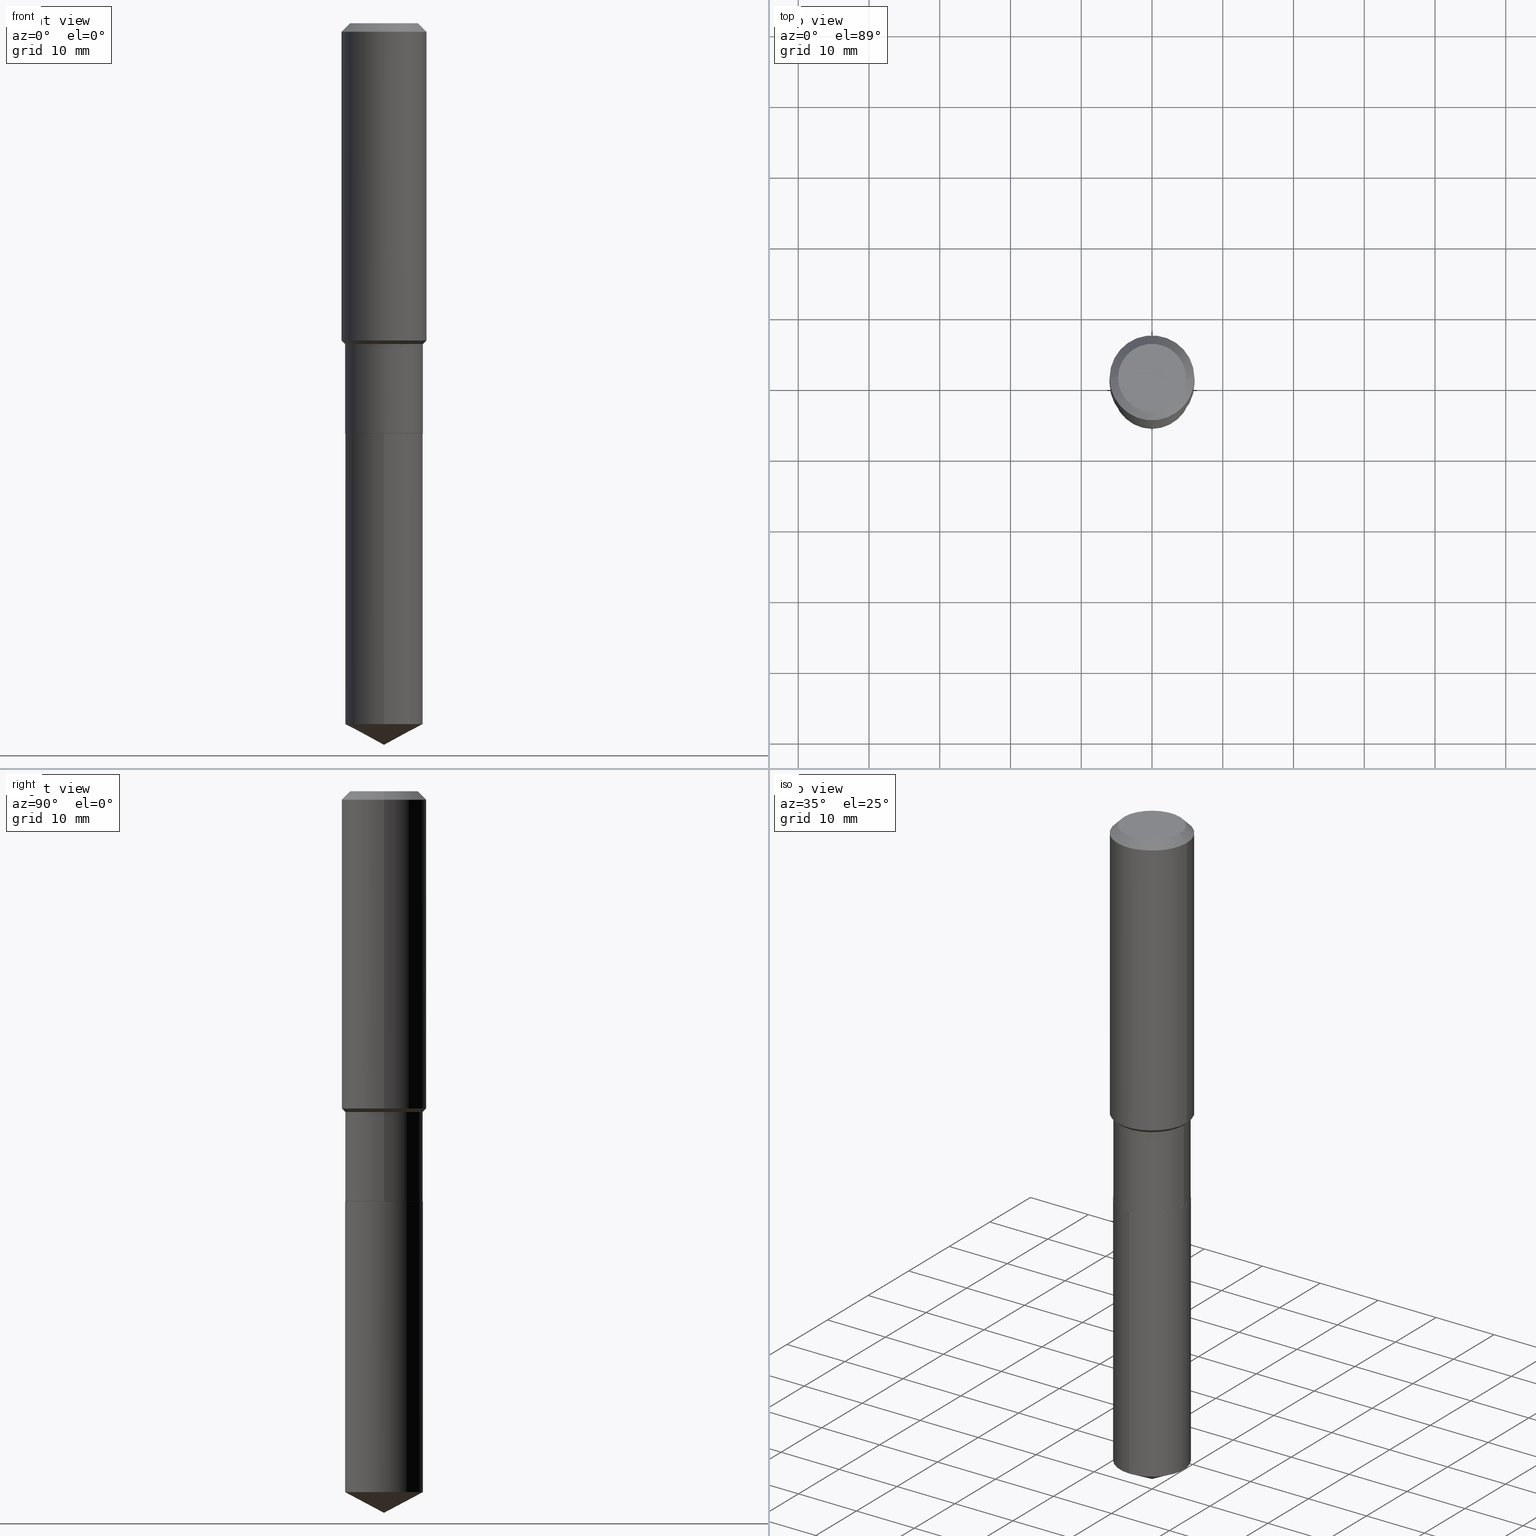
[diagram: canonical four-view strip — front | top / right | iso, engineering-drawing reading convention]
A machine part, canonical four-view strip (front | top / right | iso — engineering-drawing reading convention). The complete STEP part file that produces these views, byte-faithful:
ISO-10303-21;
HEADER;
FILE_DESCRIPTION (( 'STEP AP203' ),
    '1' );
FILE_NAME ('64680.STEP',
    '2024-04-24T18:45:04',
    ( '' ),
    ( '' ),
    'SwSTEP 2.0',
    'SolidWorks 2023',
    '' );
FILE_SCHEMA (( 'CONFIG_CONTROL_DESIGN' ));
ENDSEC;

DATA;
#1 = AXIS2_PLACEMENT_3D ( 'NONE', #94, #480, #281 ) ;
#2 = AXIS2_PLACEMENT_3D ( 'NONE', #400, #213, #442 ) ;
#3 = AXIS2_PLACEMENT_3D ( 'NONE', #462, #262, #466 ) ;
#4 =( NAMED_UNIT ( * ) PLANE_ANGLE_UNIT ( ) SI_UNIT ( $, .RADIAN. ) );
#5 = CLOSED_SHELL ( 'NONE', ( #460, #68, #359, #71, #26 ) ) ;
#6 = PLANE ( 'NONE',  #404 ) ;
#7 = DIRECTION ( 'NONE',  ( 1.000000000000000000, -6.982962677686264344E-15, 0.000000000000000000 ) ) ;
#8 = DIRECTION ( 'NONE',  ( -2.445468806185136597E-29, 3.491481338843145583E-15, 1.000000000000000000 ) ) ;
#9 = FACE_OUTER_BOUND ( 'NONE', #233, .T. ) ;
#10 = CONICAL_SURFACE ( 'NONE', #51, 0.2361999999999999933, 0.7853981633974452814 ) ;
#11 = LINE ( 'NONE', #312, #306 ) ;
#12 = DIRECTION ( 'NONE',  ( 1.000000000000000000, -6.982962677686271444E-15, 0.000000000000000000 ) ) ;
#13 = DIRECTION ( 'NONE',  ( -2.445387649813631666E-29, 3.491597559386274719E-15, 1.000000000000000000 ) ) ;
#14 = LINE ( 'NONE', #24, #285 ) ;
#15 = CLOSED_SHELL ( 'NONE', ( #318, #324, #420, #259, #145, #58, #134, #434, #377, #112, #403, #408 ) ) ;
#16 = LINE ( 'NONE', #307, #279 ) ;
#17 = MECHANICAL_CONTEXT ( 'NONE', #226, 'mechanical' ) ;
#18 = DIRECTION ( 'NONE',  ( -0.7071067811865493491, 7.493145998870360471E-15, 0.7071067811865456854 ) ) ;
#19 = CYLINDRICAL_SURFACE ( 'NONE', #485, 0.2165499999999999647 ) ;
#20 = CIRCLE ( 'NONE', #182, 0.1889600000000000168 ) ;
#21 = AXIS2_PLACEMENT_3D ( 'NONE', #342, #8, #146 ) ;
#22 = APPROVAL_DATE_TIME ( #30, #97 ) ;
#23 = CIRCLE ( 'NONE', #242, 0.2361999999999999933 ) ;
#24 = CARTESIAN_POINT ( 'NONE',  ( -0.2361999999999999933, 1.484438206022545019E-15, -0.04724000000000028177 ) ) ;
#25 = PERSON_AND_ORGANIZATION ( #139, #172 ) ;
#26 = ADVANCED_FACE ( 'NONE', ( #338 ), #6, .F. ) ;
#27 = CARTESIAN_POINT ( 'NONE',  ( 5.583983472043140562E-29, -7.972448489114438042E-15, -2.283399999999999874 ) ) ;
#28 = ORIENTED_EDGE ( 'NONE', *, *, #205, .F. ) ;
#29 = VECTOR ( 'NONE', #313, 39.37007874015748143 ) ;
#30 = DATE_AND_TIME ( #319, #151 ) ;
#31 = AXIS2_PLACEMENT_3D ( 'NONE', #143, #339, #458 ) ;
#32 = DESIGN_CONTEXT ( 'detailed design', #346, 'design' ) ;
#33 = EDGE_LOOP ( 'NONE', ( #39, #77, #157, #407 ) ) ;
#34 = EDGE_LOOP ( 'NONE', ( #438, #357, #235, #241 ) ) ;
#35 = ORIENTED_EDGE ( 'NONE', *, *, #221, .F. ) ;
#36 = VECTOR ( 'NONE', #89, 39.37007874015748143 ) ;
#37 = EDGE_LOOP ( 'NONE', ( #171, #70, #288, #329 ) ) ;
#38 = FACE_OUTER_BOUND ( 'NONE', #484, .T. ) ;
#39 = ORIENTED_EDGE ( 'NONE', *, *, #414, .F. ) ;
#40 = AXIS2_PLACEMENT_3D ( 'NONE', #118, #13, #260 ) ;
#41 = DATE_TIME_ROLE ( 'creation_date' ) ;
#42 = AXIS2_PLACEMENT_3D ( 'NONE', #160, #225, #152 ) ;
#43 = EDGE_CURVE ( 'NONE', #291, #60, #105, .T. ) ;
#44 = APPLICATION_PROTOCOL_DEFINITION ( 'international standard', 'config_control_design', 1994, #226 ) ;
#45 = CARTESIAN_POINT ( 'NONE',  ( 4.365895459682324685E-29, -6.233341634236667556E-15, -1.785299999999999887 ) ) ;
#46 = CARTESIAN_POINT ( 'NONE',  ( 1.155239464041865506E-30, -1.649375784469511859E-16, -0.04724000000000028177 ) ) ;
#47 = CARTESIAN_POINT ( 'NONE',  ( 0.000000000000000000, 0.000000000000000000, 0.000000000000000000 ) ) ;
#48 = CARTESIAN_POINT ( 'NONE',  ( 0.000000000000000000, 0.000000000000000000, 0.000000000000000000 ) ) ;
#49 = LINE ( 'NONE', #459, #61 ) ;
#50 = CARTESIAN_POINT ( 'NONE',  ( 9.819943185356599530E-29, -1.402120831922746380E-14, -4.015699999999999825 ) ) ;
#51 = AXIS2_PLACEMENT_3D ( 'NONE', #249, #102, #66 ) ;
#52 = CC_DESIGN_APPROVAL ( #472, ( #92 ) ) ;
#53 = LOCAL_TIME ( 14, 45, 4.000000000000000000, #373 ) ;
#54 = ORIENTED_EDGE ( 'NONE', *, *, #192, .T. ) ;
#55 = DIRECTION ( 'NONE',  ( -2.445468806185136597E-29, 3.491481338843145583E-15, 1.000000000000000000 ) ) ;
#56 = CARTESIAN_POINT ( 'NONE',  ( 1.155239464041865506E-30, -1.649375784469511859E-16, -0.04724000000000028177 ) ) ;
#57 = ORIENTED_EDGE ( 'NONE', *, *, #88, .T. ) ;
#58 = ADVANCED_FACE ( 'NONE', ( #441 ), #397, .T. ) ;
#59 = ORIENTED_EDGE ( 'NONE', *, *, #192, .F. ) ;
#60 = VERTEX_POINT ( 'NONE', #341 ) ;
#61 = VECTOR ( 'NONE', #267, 39.37007874015748143 ) ;
#62 = ORIENTED_EDGE ( 'NONE', *, *, #253, .T. ) ;
#63 = VERTEX_POINT ( 'NONE', #50 ) ;
#64 = EDGE_CURVE ( 'NONE', #268, #240, #197, .T. ) ;
#65 = VERTEX_POINT ( 'NONE', #91 ) ;
#66 = DIRECTION ( 'NONE',  ( -1.000000000000000000, 6.982962677686266711E-15, 0.000000000000000000 ) ) ;
#67 = ORIENTED_EDGE ( 'NONE', *, *, #88, .F. ) ;
#68 = ADVANCED_FACE ( 'NONE', ( #256 ), #163, .T. ) ;
#69 = DIRECTION ( 'NONE',  ( -6.982962677686265133E-15, -1.000000000000000000, 3.541896320645543908E-15 ) ) ;
#70 = ORIENTED_EDGE ( 'NONE', *, *, #147, .T. ) ;
#71 = ADVANCED_FACE ( 'NONE', ( #200 ), #390, .T. ) ;
#72 = PERSON_AND_ORGANIZATION_ROLE ( 'creator' ) ;
#73 = APPROVAL_ROLE ( '' ) ;
#74 = AXIS2_PLACEMENT_3D ( 'NONE', #239, #446, #385 ) ;
#75 = AXIS2_PLACEMENT_3D ( 'NONE', #180, #218, #371 ) ;
#76 = VECTOR ( 'NONE', #104, 39.37007874015748143 ) ;
#77 = ORIENTED_EDGE ( 'NONE', *, *, #257, .T. ) ;
#78 = PERSON_AND_ORGANIZATION ( #139, #172 ) ;
#79 = LOCAL_TIME ( 14, 45, 4.000000000000000000, #334 ) ;
#80 = CIRCLE ( 'NONE', #305, 0.2165499999999999370 ) ;
#81 = PERSON_AND_ORGANIZATION ( #139, #172 ) ;
#82 = CARTESIAN_POINT ( 'NONE',  ( -8.645497582555604199E-28, 1.234435279007400411E-13, 35.35437874015748605 ) ) ;
#83 = CONICAL_SURFACE ( 'NONE', #355, 0.2165499999999999370, 0.7853981633974509435 ) ;
#84 = DIRECTION ( 'NONE',  ( 1.000000000000000000, -6.982962677686266711E-15, 4.876176775795936353E-29 ) ) ;
#85 = DIRECTION ( 'NONE',  ( -6.982962677686265133E-15, -1.000000000000000000, 3.784596620176766988E-15 ) ) ;
#86 = CARTESIAN_POINT ( 'NONE',  ( 0.2165499999999999370, -7.745502202089628379E-15, -1.785299999999999887 ) ) ;
#87 = DIRECTION ( 'NONE',  ( 1.000000000000000000, -6.982962677686266711E-15, 0.000000000000000000 ) ) ;
#88 = EDGE_CURVE ( 'NONE', #63, #188, #409, .T. ) ;
#89 = DIRECTION ( 'NONE',  ( -2.445468806185136877E-29, 3.491481338843145188E-15, 1.000000000000000000 ) ) ;
#90 = CARTESIAN_POINT ( 'NONE',  ( -0.2165499999999999370, -5.563341897052346134E-15, -1.785299999999999887 ) ) ;
#91 = CARTESIAN_POINT ( 'NONE',  ( 0.1889600000000000168, -1.540873453589747738E-15, 3.855188123725863225E-18 ) ) ;
#92 = SECURITY_CLASSIFICATION ( '', '', #174 ) ;
#93 = EDGE_CURVE ( 'NONE', #410, #228, #193, .T. ) ;
#94 = CARTESIAN_POINT ( 'NONE',  ( 5.583983472043140562E-29, -7.972448489114438042E-15, -2.283399999999999874 ) ) ;
#95 = ORIENTED_EDGE ( 'NONE', *, *, #418, .T. ) ;
#96 = CIRCLE ( 'NONE', #294, 0.2160500000000000198 ) ;
#97 = APPROVAL ( #217, 'UNSPECIFIED' ) ;
#98 = PERSON_AND_ORGANIZATION ( #139, #172 ) ;
#99 = ORIENTED_EDGE ( 'NONE', *, *, #351, .T. ) ;
#100 = PLANE ( 'NONE',  #74 ) ;
#101 = DATE_AND_TIME ( #178, #437 ) ;
#102 = DIRECTION ( 'NONE',  ( 2.445468806185136597E-29, -3.491481338843145583E-15, -1.000000000000000000 ) ) ;
#103 = VERTEX_POINT ( 'NONE', #298 ) ;
#104 = DIRECTION ( 'NONE',  ( -0.7071067811866199593, 7.493145998870616062E-15, 0.7071067811864750752 ) ) ;
#105 = CIRCLE ( 'NONE', #1, 0.2165500000000000203 ) ;
#106 = ORIENTED_EDGE ( 'NONE', *, *, #232, .F. ) ;
#107 = ORIENTED_EDGE ( 'NONE', *, *, #220, .F. ) ;
#108 = CC_DESIGN_SECURITY_CLASSIFICATION ( #92, ( #323 ) ) ;
#109 = APPROVAL_PERSON_ORGANIZATION ( #25, #472, #398 ) ;
#110 = EDGE_CURVE ( 'NONE', #209, #188, #422, .T. ) ;
#111 = CARTESIAN_POINT ( 'NONE',  ( 4.365895459682324685E-29, -6.233341634236667556E-15, -1.785299999999999887 ) ) ;
#112 = ADVANCED_FACE ( 'NONE', ( #439 ), #173, .F. ) ;
#113 = FACE_OUTER_BOUND ( 'NONE', #33, .T. ) ;
#114 = EDGE_CURVE ( 'NONE', #308, #278, #11, .T. ) ;
#115 = ORIENTED_EDGE ( 'NONE', *, *, #330, .T. ) ;
#116 = ORIENTED_EDGE ( 'NONE', *, *, #64, .F. ) ;
#117 = DIRECTION ( 'NONE',  ( 0.000000000000000000, 0.000000000000000000, 1.000000000000000000 ) ) ;
#118 = CARTESIAN_POINT ( 'NONE',  ( 5.583983472043140562E-29, -7.972448489114438042E-15, -2.283399999999999874 ) ) ;
#119 = ORIENTED_EDGE ( 'NONE', *, *, #177, .T. ) ;
#120 = DIRECTION ( 'NONE',  ( -2.445468806185136597E-29, 3.491481338843145583E-15, 1.000000000000000000 ) ) ;
#121 = AXIS2_PLACEMENT_3D ( 'NONE', #198, #467, #415 ) ;
#122 = DIRECTION ( 'NONE',  ( -1.000000000000000000, 6.982962677686266711E-15, 0.000000000000000000 ) ) ;
#123 = EDGE_LOOP ( 'NONE', ( #274, #353, #155, #454 ) ) ;
#124 = CONICAL_SURFACE ( 'NONE', #416, 0.2160500000000000198, 0.7853981633975507526 ) ;
#125 = CC_DESIGN_APPROVAL ( #97, ( #323 ) ) ;
#126 = DIRECTION ( 'NONE',  ( 6.982962677686265922E-15, 1.000000000000000000, -3.491597559386275113E-15 ) ) ;
#127 = FACE_OUTER_BOUND ( 'NONE', #245, .T. ) ;
#128 = ORIENTED_EDGE ( 'NONE', *, *, #148, .T. ) ;
#129 = DIRECTION ( 'NONE',  ( -6.982962677686265133E-15, -1.000000000000000000, 3.784596620176766988E-15 ) ) ;
#130 = PERSON_AND_ORGANIZATION ( #139, #172 ) ;
#131 = ORIENTED_EDGE ( 'NONE', *, *, #147, .F. ) ;
#132 = CIRCLE ( 'NONE', #31, 0.2165500000000000203 ) ;
#133 = CIRCLE ( 'NONE', #2, 0.2165500000000000203 ) ;
#134 = ADVANCED_FACE ( 'NONE', ( #303 ), #154, .T. ) ;
#135 = ORIENTED_EDGE ( 'NONE', *, *, #366, .F. ) ;
#136 = VECTOR ( 'NONE', #222, 39.37007874015748854 ) ;
#137 = ORIENTED_EDGE ( 'NONE', *, *, #221, .T. ) ;
#138 = DIRECTION ( 'NONE',  ( 0.7071067811866199593, -2.468850131083015945E-15, 0.7071067811864750752 ) ) ;
#139 = PERSON ( 'UNSPECIFIED', 'UNSPECIFIED', 'UNSPECIFIED', ('UNSPECIFIED'), ('UNSPECIFIED'), ('UNSPECIFIED') ) ;
#140 = PRODUCT_DEFINITION ( 'UNKNOWN', '', #323, #32 ) ;
#141 = PRODUCT_RELATED_PRODUCT_CATEGORY ( 'detail', '', ( #258 ) ) ;
#142 = CARTESIAN_POINT ( 'NONE',  ( 5.583983472043140562E-29, -7.972448489114438042E-15, -2.283399999999999874 ) ) ;
#143 = CARTESIAN_POINT ( 'NONE',  ( 9.538562461858214852E-29, -1.361891454135399872E-14, -3.900558322573707937 ) ) ;
#144 = ORIENTED_EDGE ( 'NONE', *, *, #450, .T. ) ;
#145 = ADVANCED_FACE ( 'NONE', ( #382 ), #19, .T. ) ;
#146 = DIRECTION ( 'NONE',  ( 1.000000000000000000, -6.982962677686266711E-15, 0.000000000000000000 ) ) ;
#147 = EDGE_CURVE ( 'NONE', #65, #240, #156, .T. ) ;
#148 = EDGE_CURVE ( 'NONE', #63, #209, #166, .T. ) ;
#149 = PRODUCT_DEFINITION_SHAPE ( 'NONE', 'NONE',  #140 ) ;
#150 = AXIS2_PLACEMENT_3D ( 'NONE', #45, #326, #187 ) ;
#151 = LOCAL_TIME ( 14, 45, 4.000000000000000000, #276 ) ;
#152 = DIRECTION ( 'NONE',  ( -1.000000000000000000, 6.982962677686265922E-15, -4.876176775795935793E-29 ) ) ;
#153 = ORIENTED_EDGE ( 'NONE', *, *, #114, .F. ) ;
#154 = CONICAL_SURFACE ( 'NONE', #413, 0.2165499999999999370, 0.7853981633974509435 ) ;
#155 = ORIENTED_EDGE ( 'NONE', *, *, #205, .T. ) ;
#156 = LINE ( 'NONE', #309, #254 ) ;
#157 = ORIENTED_EDGE ( 'NONE', *, *, #64, .T. ) ;
#158 = CC_DESIGN_PERSON_AND_ORGANIZATION_ASSIGNMENT ( #185, #290, ( #140 ) ) ;
#159 = CALENDAR_DATE ( 2024, 24, 4 ) ;
#160 = CARTESIAN_POINT ( 'NONE',  ( -4.713871149261273121E-47, 6.730158695841826722E-33, 1.927594061857931128E-18 ) ) ;
#161 = AXIS2_PLACEMENT_3D ( 'NONE', #46, #201, #191 ) ;
#162 = CARTESIAN_POINT ( 'NONE',  ( -0.2165500000000000203, -5.563341897052346134E-15, -2.282900000000000151 ) ) ;
#163 = CONICAL_SURFACE ( 'NONE', #237, 74.04434902938389484, 1.082104136236488490 ) ;
#164 = APPROVAL ( #255, 'UNSPECIFIED' ) ;
#165 = DIRECTION ( 'NONE',  ( -6.982962677686265133E-15, -1.000000000000000000, 2.523064413451178124E-15 ) ) ;
#166 = LINE ( 'NONE', #487, #476 ) ;
#167 = ORIENTED_EDGE ( 'NONE', *, *, #93, .T. ) ;
#168 = COORDINATED_UNIVERSAL_TIME_OFFSET ( 5, 0, .BEHIND. ) ;
#169 = VERTEX_POINT ( 'NONE', #86 ) ;
#170 = DIRECTION ( 'NONE',  ( -2.445387649813631666E-29, 3.491597559386274719E-15, 1.000000000000000000 ) ) ;
#171 = ORIENTED_EDGE ( 'NONE', *, *, #478, .F. ) ;
#172 = ORGANIZATION ( 'UNSPECIFIED', 'UNSPECIFIED', '' ) ;
#173 = PLANE ( 'NONE',  #42 ) ;
#174 = SECURITY_CLASSIFICATION_LEVEL ( 'unclassified' ) ;
#175 = ORIENTED_EDGE ( 'NONE', *, *, #447, .F. ) ;
#176 = CARTESIAN_POINT ( 'NONE',  ( -8.645497582555604199E-28, 1.234435279007400411E-13, 35.35437874015748605 ) ) ;
#177 = EDGE_CURVE ( 'NONE', #238, #410, #207, .T. ) ;
#178 = CALENDAR_DATE ( 2024, 24, 4 ) ;
#179 = ORIENTED_EDGE ( 'NONE', *, *, #110, .F. ) ;
#180 = CARTESIAN_POINT ( 'NONE',  ( 0.000000000000000000, 0.000000000000000000, 0.000000000000000000 ) ) ;
#181 =( GEOMETRIC_REPRESENTATION_CONTEXT ( 3 ) GLOBAL_UNCERTAINTY_ASSIGNED_CONTEXT ( ( #328 ) ) GLOBAL_UNIT_ASSIGNED_CONTEXT ( ( #236, #4, #216 ) ) REPRESENTATION_CONTEXT ( 'NONE', 'WORKASPACE' ) );
#182 = AXIS2_PLACEMENT_3D ( 'NONE', #372, #296, #386 ) ;
#183 = EDGE_LOOP ( 'NONE', ( #67, #128, #107 ) ) ;
#184 = AXIS2_PLACEMENT_3D ( 'NONE', #47, #424, #383 ) ;
#185 = PERSON_AND_ORGANIZATION ( #139, #172 ) ;
#186 = DATE_AND_TIME ( #489, #53 ) ;
#187 = DIRECTION ( 'NONE',  ( 1.000000000000000000, -6.982962677686266711E-15, 0.000000000000000000 ) ) ;
#188 = VERTEX_POINT ( 'NONE', #374 ) ;
#189 = LINE ( 'NONE', #340, #36 ) ;
#190 = VECTOR ( 'NONE', #138, 39.37007874015748143 ) ;
#191 = DIRECTION ( 'NONE',  ( 1.000000000000000000, -6.982962677686266711E-15, 0.000000000000000000 ) ) ;
#192 = EDGE_CURVE ( 'NONE', #228, #169, #189, .T. ) ;
#193 = LINE ( 'NONE', #455, #190 ) ;
#194 = DIRECTION ( 'NONE',  ( -2.445468806185136597E-29, 3.491481338843145583E-15, 1.000000000000000000 ) ) ;
#195 = DIRECTION ( 'NONE',  ( 6.273719981627772387E-15, 0.8829475928589306521, 0.4694715627858840334 ) ) ;
#196 = CIRCLE ( 'NONE', #150, 0.2165499999999999370 ) ;
#197 = LINE ( 'NONE', #264, #379 ) ;
#198 = CARTESIAN_POINT ( 'NONE',  ( 5.583983472043140562E-29, -7.972448489114438042E-15, -2.283399999999999874 ) ) ;
#199 = ORIENTED_EDGE ( 'NONE', *, *, #292, .T. ) ;
#200 = FACE_OUTER_BOUND ( 'NONE', #123, .T. ) ;
#201 = DIRECTION ( 'NONE',  ( -2.445468806185136597E-29, 3.491481338843145583E-15, 1.000000000000000000 ) ) ;
#202 = DIRECTION ( 'NONE',  ( 2.445387649813630825E-29, -3.491597559386275113E-15, -1.000000000000000000 ) ) ;
#203 = DIRECTION ( 'NONE',  ( -2.445468806185136597E-29, 3.491481338843145583E-15, 1.000000000000000000 ) ) ;
#204 = CONICAL_SURFACE ( 'NONE', #314, 0.2361999999999999933, 0.7853981633974452814 ) ;
#205 = EDGE_CURVE ( 'NONE', #188, #60, #49, .T. ) ;
#206 = APPROVAL_STATUS ( 'not_yet_approved' ) ;
#207 = CIRCLE ( 'NONE', #121, 0.2160500000000000198 ) ;
#208 = CARTESIAN_POINT ( 'NONE',  ( 5.583983472043140562E-29, -7.972448489114438042E-15, -2.283399999999999874 ) ) ;
#209 = VERTEX_POINT ( 'NONE', #431 ) ;
#210 = FACE_OUTER_BOUND ( 'NONE', #37, .T. ) ;
#211 = EDGE_LOOP ( 'NONE', ( #153, #367, #54, #445 ) ) ;
#212 = COORDINATED_UNIVERSAL_TIME_OFFSET ( 5, 0, .BEHIND. ) ;
#213 = DIRECTION ( 'NONE',  ( -2.445468806185136597E-29, 3.491481338843145583E-15, 1.000000000000000000 ) ) ;
#214 = ORIENTED_EDGE ( 'NONE', *, *, #230, .T. ) ;
#215 = PERSON_AND_ORGANIZATION_ROLE ( 'design_supplier' ) ;
#216 =( NAMED_UNIT ( * ) SI_UNIT ( $, .STERADIAN. ) SOLID_ANGLE_UNIT ( ) );
#217 = APPROVAL_STATUS ( 'not_yet_approved' ) ;
#218 = DIRECTION ( 'NONE',  ( -2.445468806185136597E-29, 3.491481338843145583E-15, 1.000000000000000000 ) ) ;
#219 = PERSON_AND_ORGANIZATION_ROLE ( 'design_owner' ) ;
#220 = EDGE_CURVE ( 'NONE', #188, #209, #132, .T. ) ;
#221 = EDGE_CURVE ( 'NONE', #402, #65, #20, .T. ) ;
#222 = DIRECTION ( 'NONE',  ( -6.165590087286841551E-15, -0.8829475928589272105, 0.4694715627858901952 ) ) ;
#223 = CARTESIAN_POINT ( 'NONE',  ( -9.427742298522546243E-47, 1.346031739168365344E-32, 3.855188123715862256E-18 ) ) ;
#224 = CARTESIAN_POINT ( 'NONE',  ( 5.583983472043140562E-29, -7.972448489114438042E-15, -2.283399999999999874 ) ) ;
#225 = DIRECTION ( 'NONE',  ( 2.438088387897960049E-29, -3.491481338843145188E-15, -1.000000000000000000 ) ) ;
#226 = APPLICATION_CONTEXT ( 'configuration controlled 3d designs of mechanical parts and assemblies' ) ;
#227 = FACE_OUTER_BOUND ( 'NONE', #311, .T. ) ;
#228 = VERTEX_POINT ( 'NONE', #419 ) ;
#229 = DIRECTION ( 'NONE',  ( 1.000000000000000000, -6.982962677686266711E-15, 0.000000000000000000 ) ) ;
#230 = EDGE_CURVE ( 'NONE', #278, #103, #16, .T. ) ;
#231 = EDGE_LOOP ( 'NONE', ( #468, #214, #247, #175 ) ) ;
#232 = EDGE_CURVE ( 'NONE', #169, #278, #80, .T. ) ;
#233 = EDGE_LOOP ( 'NONE', ( #144, #280, #488, #116 ) ) ;
#234 = AXIS2_PLACEMENT_3D ( 'NONE', #176, #170, #452 ) ;
#235 = ORIENTED_EDGE ( 'NONE', *, *, #447, .T. ) ;
#236 =( CONVERSION_BASED_UNIT ( 'INCH', #393 ) LENGTH_UNIT ( ) NAMED_UNIT ( #426 ) );
#237 = AXIS2_PLACEMENT_3D ( 'NONE', #82, #327, #69 ) ;
#238 = VERTEX_POINT ( 'NONE', #471 ) ;
#239 = CARTESIAN_POINT ( 'NONE',  ( 5.583983472043140562E-29, -7.972448489114438042E-15, -2.283399999999999874 ) ) ;
#240 = VERTEX_POINT ( 'NONE', #432 ) ;
#241 = ORIENTED_EDGE ( 'NONE', *, *, #257, .F. ) ;
#242 = AXIS2_PLACEMENT_3D ( 'NONE', #56, #356, #317 ) ;
#243 = EDGE_LOOP ( 'NONE', ( #315, #115, #444, #28 ) ) ;
#244 = AXIS2_PLACEMENT_3D ( 'NONE', #142, #457, #85 ) ;
#245 = EDGE_LOOP ( 'NONE', ( #363, #396 ) ) ;
#246 = LINE ( 'NONE', #486, #76 ) ;
#247 = ORIENTED_EDGE ( 'NONE', *, *, #450, .F. ) ;
#248 = DIRECTION ( 'NONE',  ( 0.7071067811865493491, -2.468850131082276388E-15, 0.7071067811865456854 ) ) ;
#249 = CARTESIAN_POINT ( 'NONE',  ( 1.155239464041865506E-30, -1.649375784469511859E-16, -0.04724000000000028177 ) ) ;
#250 = AXIS2_PLACEMENT_3D ( 'NONE', #265, #428, #7 ) ;
#251 = APPROVAL_DATE_TIME ( #186, #164 ) ;
#252 = CIRCLE ( 'NONE', #347, 0.1889600000000000168 ) ;
#253 = EDGE_CURVE ( 'NONE', #375, #240, #483, .T. ) ;
#254 = VECTOR ( 'NONE', #297, 39.37007874015748143 ) ;
#255 = APPROVAL_STATUS ( 'not_yet_approved' ) ;
#256 = FACE_OUTER_BOUND ( 'NONE', #183, .T. ) ;
#257 = EDGE_CURVE ( 'NONE', #103, #268, #449, .T. ) ;
#258 = PRODUCT ( '64680', '64680', '', ( #17 ) ) ;
#259 = ADVANCED_FACE ( 'NONE', ( #261 ), #83, .T. ) ;
#260 = DIRECTION ( 'NONE',  ( -6.982962677686265133E-15, -1.000000000000000000, 3.784596620176766988E-15 ) ) ;
#261 = FACE_OUTER_BOUND ( 'NONE', #231, .T. ) ;
#262 = DIRECTION ( 'NONE',  ( -2.445468806185136597E-29, 3.491481338843145583E-15, 1.000000000000000000 ) ) ;
#263 = CYLINDRICAL_SURFACE ( 'NONE', #75, 0.2362000000000001043 ) ;
#264 = CARTESIAN_POINT ( 'NONE',  ( 0.2362000000000001043, -1.649375784469496920E-15, 1.151752954443000508E-29 ) ) ;
#265 = CARTESIAN_POINT ( 'NONE',  ( 5.582760737640048882E-29, -7.970702748445017327E-15, -2.282900000000000151 ) ) ;
#266 = CONICAL_SURFACE ( 'NONE', #234, 74.04434902938389484, 1.082104136236488490 ) ;
#267 = DIRECTION ( 'NONE',  ( -2.445387649813631666E-29, 3.491597559386275113E-15, 1.000000000000000000 ) ) ;
#268 = VERTEX_POINT ( 'NONE', #425 ) ;
#269 = EDGE_LOOP ( 'NONE', ( #99, #283, #106, #59 ) ) ;
#270 = CARTESIAN_POINT ( 'NONE',  ( 4.365895459682324685E-29, -6.233341634236667556E-15, -1.785299999999999887 ) ) ;
#271 = CARTESIAN_POINT ( 'NONE',  ( 5.583983472043140562E-29, -7.972448489114438042E-15, -2.283399999999999874 ) ) ;
#272 = FACE_OUTER_BOUND ( 'NONE', #451, .T. ) ;
#273 = LINE ( 'NONE', #433, #348 ) ;
#274 = ORIENTED_EDGE ( 'NONE', *, *, #330, .F. ) ;
#275 = DIRECTION ( 'NONE',  ( -2.445468806185136597E-29, 3.491481338843145583E-15, 1.000000000000000000 ) ) ;
#276 = COORDINATED_UNIVERSAL_TIME_OFFSET ( 5, 0, .BEHIND. ) ;
#277 = AXIS2_PLACEMENT_3D ( 'NONE', #208, #360, #129 ) ;
#278 = VERTEX_POINT ( 'NONE', #90 ) ;
#279 = VECTOR ( 'NONE', #18, 39.37007874015748143 ) ;
#280 = ORIENTED_EDGE ( 'NONE', *, *, #414, .T. ) ;
#281 = DIRECTION ( 'NONE',  ( -6.982962677686265133E-15, -1.000000000000000000, 3.784596620176766988E-15 ) ) ;
#282 = CARTESIAN_POINT ( 'NONE',  ( -0.1889600000000000168, 1.401969416799070942E-15, 3.855188123706346622E-18 ) ) ;
#283 = ORIENTED_EDGE ( 'NONE', *, *, #114, .T. ) ;
#284 = LINE ( 'NONE', #395, #354 ) ;
#285 = VECTOR ( 'NONE', #391, 39.37007874015748143 ) ;
#286 = PERSON_AND_ORGANIZATION ( #139, #172 ) ;
#287 = PERSON_AND_ORGANIZATION ( #139, #172 ) ;
#288 = ORIENTED_EDGE ( 'NONE', *, *, #316, .T. ) ;
#289 = DATE_AND_TIME ( #159, #384 ) ;
#290 = PERSON_AND_ORGANIZATION_ROLE ( 'creator' ) ;
#291 = VERTEX_POINT ( 'NONE', #349 ) ;
#292 = EDGE_CURVE ( 'NONE', #402, #375, #14, .T. ) ;
#293 = APPLICATION_PROTOCOL_DEFINITION ( 'international standard', 'config_control_design', 1994, #346 ) ;
#294 = AXIS2_PLACEMENT_3D ( 'NONE', #224, #429, #304 ) ;
#295 = APPROVAL_PERSON_ORGANIZATION ( #81, #97, #337 ) ;
#296 = DIRECTION ( 'NONE',  ( -2.445468806185136597E-29, 3.491481338843145583E-15, 1.000000000000000000 ) ) ;
#297 = DIRECTION ( 'NONE',  ( 0.7071067811865453523, -7.319954787623248157E-15, -0.7071067811865496822 ) ) ;
#298 = CARTESIAN_POINT ( 'NONE',  ( -0.2362000000000002153, -4.486432084063041733E-15, -1.765649999999999720 ) ) ;
#299 = MANIFOLD_SOLID_BREP ( 'Body-Move/Copy2[1]', #5 ) ;
#300 = CYLINDRICAL_SURFACE ( 'NONE', #3, 0.2362000000000001043 ) ;
#301 = AXIS2_PLACEMENT_3D ( 'NONE', #463, #117, #423 ) ;
#302 = AXIS2_PLACEMENT_3D ( 'NONE', #411, #55, #430 ) ;
#303 = FACE_OUTER_BOUND ( 'NONE', #34, .T. ) ;
#304 = DIRECTION ( 'NONE',  ( 1.000000000000000000, -6.982962677686271444E-15, 0.000000000000000000 ) ) ;
#305 = AXIS2_PLACEMENT_3D ( 'NONE', #111, #310, #87 ) ;
#306 = VECTOR ( 'NONE', #344, 39.37007874015748143 ) ;
#307 = CARTESIAN_POINT ( 'NONE',  ( -0.2165499999999999370, -4.694661339948171249E-15, -1.785299999999999887 ) ) ;
#308 = VERTEX_POINT ( 'NONE', #162 ) ;
#309 = CARTESIAN_POINT ( 'NONE',  ( 0.2361999999999999933, -1.785387205520586782E-15, -0.04724000000000028177 ) ) ;
#310 = DIRECTION ( 'NONE',  ( -2.445468806185136597E-29, 3.491481338843145583E-15, 1.000000000000000000 ) ) ;
#311 = EDGE_LOOP ( 'NONE', ( #135, #119, #167, #332 ) ) ;
#312 = CARTESIAN_POINT ( 'NONE',  ( -0.2165499999999999647, 1.538680294288496702E-15, -1.065195393794699783E-29 ) ) ;
#313 = DIRECTION ( 'NONE',  ( -2.445468806185136877E-29, 3.491481338843145188E-15, 1.000000000000000000 ) ) ;
#314 = AXIS2_PLACEMENT_3D ( 'NONE', #325, #481, #122 ) ;
#315 = ORIENTED_EDGE ( 'NONE', *, *, #220, .T. ) ;
#316 = EDGE_CURVE ( 'NONE', #240, #375, #23, .T. ) ;
#317 = DIRECTION ( 'NONE',  ( 1.000000000000000000, -6.982962677686266711E-15, 0.000000000000000000 ) ) ;
#318 = ADVANCED_FACE ( 'NONE', ( #272 ), #436, .T. ) ;
#319 = CALENDAR_DATE ( 2024, 24, 4 ) ;
#320 = FACE_OUTER_BOUND ( 'NONE', #440, .T. ) ;
#321 = CC_DESIGN_PERSON_AND_ORGANIZATION_ASSIGNMENT ( #286, #72, ( #323 ) ) ;
#322 = CIRCLE ( 'NONE', #277, 0.2165500000000000203 ) ;
#323 = PRODUCT_DEFINITION_FORMATION_WITH_SPECIFIED_SOURCE ( 'ANY', '', #258, .NOT_KNOWN. ) ;
#324 = ADVANCED_FACE ( 'NONE', ( #210 ), #10, .T. ) ;
#325 = CARTESIAN_POINT ( 'NONE',  ( 1.155239464041865506E-30, -1.649375784469511859E-16, -0.04724000000000028177 ) ) ;
#326 = DIRECTION ( 'NONE',  ( -2.445468806185136597E-29, 3.491481338843145583E-15, 1.000000000000000000 ) ) ;
#327 = DIRECTION ( 'NONE',  ( -2.445387649813631666E-29, 3.491597559386274719E-15, 1.000000000000000000 ) ) ;
#328 = UNCERTAINTY_MEASURE_WITH_UNIT (LENGTH_MEASURE( 1.000000000000000082E-05 ), #236, 'distance_accuracy_value', 'NONE');
#329 = ORIENTED_EDGE ( 'NONE', *, *, #292, .F. ) ;
#330 = EDGE_CURVE ( 'NONE', #209, #291, #284, .T. ) ;
#331 = CC_DESIGN_PERSON_AND_ORGANIZATION_ASSIGNMENT ( #78, #219, ( #258 ) ) ;
#332 = ORIENTED_EDGE ( 'NONE', *, *, #473, .F. ) ;
#333 = CALENDAR_DATE ( 2024, 24, 4 ) ;
#334 = COORDINATED_UNIVERSAL_TIME_OFFSET ( 5, 0, .BEHIND. ) ;
#335 = CC_DESIGN_DATE_AND_TIME_ASSIGNMENT ( #101, #421, ( #92 ) ) ;
#336 = CC_DESIGN_APPROVAL ( #164, ( #140 ) ) ;
#337 = APPROVAL_ROLE ( '' ) ;
#338 = FACE_OUTER_BOUND ( 'NONE', #394, .T. ) ;
#339 = DIRECTION ( 'NONE',  ( -2.445387649813631666E-29, 3.491597559386274719E-15, 1.000000000000000000 ) ) ;
#340 = CARTESIAN_POINT ( 'NONE',  ( 0.2165499999999999647, -1.512160567852960823E-15, 1.055936080798609895E-29 ) ) ;
#341 = CARTESIAN_POINT ( 'NONE',  ( -1.512160567852905011E-15, -0.2165500000000079583, -2.283399999999998986 ) ) ;
#342 = CARTESIAN_POINT ( 'NONE',  ( 4.317841997640785659E-29, -6.164734025928398916E-15, -1.765649999999999720 ) ) ;
#343 = CARTESIAN_POINT ( 'NONE',  ( 9.538562461858214852E-29, -1.361891454135399872E-14, -3.900558322573707937 ) ) ;
#344 = DIRECTION ( 'NONE',  ( -2.445468806185136877E-29, 3.491481338843145188E-15, 1.000000000000000000 ) ) ;
#345 = DIRECTION ( 'NONE',  ( 1.000000000000000000, -6.982962677686266711E-15, 4.876185090822587894E-29 ) ) ;
#346 = APPLICATION_CONTEXT ( 'configuration controlled 3d designs of mechanical parts and assemblies' ) ;
#347 = AXIS2_PLACEMENT_3D ( 'NONE', #223, #352, #345 ) ;
#348 = VECTOR ( 'NONE', #248, 39.37007874015748143 ) ;
#349 = CARTESIAN_POINT ( 'NONE',  ( 1.538680294288592549E-15, 0.2165499999999920544, -2.283400000000000762 ) ) ;
#350 = DIRECTION ( 'NONE',  ( -2.445468806185136597E-29, 3.491481338843145583E-15, 1.000000000000000000 ) ) ;
#351 = EDGE_CURVE ( 'NONE', #228, #308, #133, .T. ) ;
#352 = DIRECTION ( 'NONE',  ( -2.445468806185136597E-29, 3.491481338843145583E-15, 1.000000000000000000 ) ) ;
#353 = ORIENTED_EDGE ( 'NONE', *, *, #110, .T. ) ;
#354 = VECTOR ( 'NONE', #364, 39.37007874015748143 ) ;
#355 = AXIS2_PLACEMENT_3D ( 'NONE', #381, #194, #465 ) ;
#356 = DIRECTION ( 'NONE',  ( -2.445468806185136597E-29, 3.491481338843145583E-15, 1.000000000000000000 ) ) ;
#357 = ORIENTED_EDGE ( 'NONE', *, *, #443, .T. ) ;
#358 = ORIENTED_EDGE ( 'NONE', *, *, #148, .F. ) ;
#359 = ADVANCED_FACE ( 'NONE', ( #38 ), #266, .T. ) ;
#360 = DIRECTION ( 'NONE',  ( -2.445387649813631666E-29, 3.491597559386274719E-15, 1.000000000000000000 ) ) ;
#361 = EDGE_LOOP ( 'NONE', ( #137, #362 ) ) ;
#362 = ORIENTED_EDGE ( 'NONE', *, *, #478, .T. ) ;
#363 = ORIENTED_EDGE ( 'NONE', *, *, #418, .F. ) ;
#364 = DIRECTION ( 'NONE',  ( -2.445387649813631666E-29, 3.491597559386275113E-15, 1.000000000000000000 ) ) ;
#365 = ORIENTED_EDGE ( 'NONE', *, *, #399, .T. ) ;
#366 = EDGE_CURVE ( 'NONE', #238, #308, #246, .T. ) ;
#367 = ORIENTED_EDGE ( 'NONE', *, *, #473, .T. ) ;
#368 = CARTESIAN_POINT ( 'NONE',  ( -0.2361999999999999933, -1.486533860322317535E-15, -0.04724000000000028177 ) ) ;
#369 = APPROVAL_PERSON_ORGANIZATION ( #287, #164, #73 ) ;
#370 = CC_DESIGN_PERSON_AND_ORGANIZATION_ASSIGNMENT ( #130, #479, ( #92 ) ) ;
#371 = DIRECTION ( 'NONE',  ( 1.000000000000000000, -6.982962677686266711E-15, 4.876176775795935793E-29 ) ) ;
#372 = CARTESIAN_POINT ( 'NONE',  ( -9.427742298522546243E-47, 1.346031739168365344E-32, 3.855188123715862256E-18 ) ) ;
#373 = COORDINATED_UNIVERSAL_TIME_OFFSET ( 5, 0, .BEHIND. ) ;
#374 = CARTESIAN_POINT ( 'NONE',  ( -1.512160567852865370E-15, -0.2165500000000135927, -3.900558322573707493 ) ) ;
#375 = VERTEX_POINT ( 'NONE', #368 ) ;
#376 = CYLINDRICAL_SURFACE ( 'NONE', #40, 0.2165500000000000203 ) ;
#377 = ADVANCED_FACE ( 'NONE', ( #320 ), #204, .T. ) ;
#378 = CARTESIAN_POINT ( 'NONE',  ( 5.583983472043140562E-29, -7.972448489114438042E-15, -2.283399999999999874 ) ) ;
#379 = VECTOR ( 'NONE', #427, 39.37007874015748143 ) ;
#380 = CARTESIAN_POINT ( 'NONE',  ( 9.819943185356598409E-29, -1.402120831922746222E-14, -4.015699999999999825 ) ) ;
#381 = CARTESIAN_POINT ( 'NONE',  ( 4.365895459682324685E-29, -6.233341634236667556E-15, -1.785299999999999887 ) ) ;
#382 = FACE_OUTER_BOUND ( 'NONE', #269, .T. ) ;
#383 = DIRECTION ( 'NONE',  ( 1.000000000000000000, -6.982962677686266711E-15, 4.876176775795936353E-29 ) ) ;
#384 = LOCAL_TIME ( 14, 45, 4.000000000000000000, #212 ) ;
#385 = DIRECTION ( 'NONE',  ( 1.000000000000000000, -6.982962677686265922E-15, 4.876176775795935793E-29 ) ) ;
#386 = DIRECTION ( 'NONE',  ( 1.000000000000000000, -6.982962677686266711E-15, 4.876185090822587894E-29 ) ) ;
#387 = ORIENTED_EDGE ( 'NONE', *, *, #43, .T. ) ;
#388 = ORIENTED_EDGE ( 'NONE', *, *, #93, .F. ) ;
#389 = CARTESIAN_POINT ( 'NONE',  ( 0.2160500000000000198, -9.481117575628557435E-15, -2.283399999999999874 ) ) ;
#390 = CYLINDRICAL_SURFACE ( 'NONE', #244, 0.2165500000000000203 ) ;
#391 = DIRECTION ( 'NONE',  ( -0.7071067811865453523, 2.468850131082234184E-15, -0.7071067811865496822 ) ) ;
#392 = DIRECTION ( 'NONE',  ( 1.000000000000000000, -6.982962677686271444E-15, 0.000000000000000000 ) ) ;
#393 = LENGTH_MEASURE_WITH_UNIT ( LENGTH_MEASURE( 0.02539999999999999897 ), #464 );
#394 = EDGE_LOOP ( 'NONE', ( #365, #387 ) ) ;
#395 = CARTESIAN_POINT ( 'NONE',  ( 1.538680294288552514E-15, 0.2165499999999920544, -2.283400000000000762 ) ) ;
#396 = ORIENTED_EDGE ( 'NONE', *, *, #177, .F. ) ;
#397 = CYLINDRICAL_SURFACE ( 'NONE', #184, 0.2165499999999999647 ) ;
#398 = APPROVAL_ROLE ( '' ) ;
#399 = EDGE_CURVE ( 'NONE', #60, #291, #322, .T. ) ;
#400 = CARTESIAN_POINT ( 'NONE',  ( 5.582760737640048882E-29, -7.970702748445017327E-15, -2.282900000000000151 ) ) ;
#401 = DIRECTION ( 'NONE',  ( -2.445387649813631666E-29, 3.491597559386274719E-15, 1.000000000000000000 ) ) ;
#402 = VERTEX_POINT ( 'NONE', #282 ) ;
#403 = ADVANCED_FACE ( 'NONE', ( #127 ), #100, .F. ) ;
#404 = AXIS2_PLACEMENT_3D ( 'NONE', #378, #202, #126 ) ;
#405 = APPROVAL_DATE_TIME ( #289, #472 ) ;
#406 = ADVANCED_BREP_SHAPE_REPRESENTATION ( '64680', ( #299, #474, #301 ), #181 ) ;
#407 = ORIENTED_EDGE ( 'NONE', *, *, #253, .F. ) ;
#408 = ADVANCED_FACE ( 'NONE', ( #227 ), #124, .T. ) ;
#409 = LINE ( 'NONE', #380, #136 ) ;
#410 = VERTEX_POINT ( 'NONE', #389 ) ;
#411 = CARTESIAN_POINT ( 'NONE',  ( 4.317841997640785659E-29, -6.164734025928398916E-15, -1.765649999999999720 ) ) ;
#412 = AXIS2_PLACEMENT_3D ( 'NONE', #27, #275, #392 ) ;
#413 = AXIS2_PLACEMENT_3D ( 'NONE', #270, #120, #229 ) ;
#414 = EDGE_CURVE ( 'NONE', #103, #375, #417, .T. ) ;
#415 = DIRECTION ( 'NONE',  ( 1.000000000000000000, -6.982962677686271444E-15, 0.000000000000000000 ) ) ;
#416 = AXIS2_PLACEMENT_3D ( 'NONE', #271, #203, #12 ) ;
#417 = LINE ( 'NONE', #470, #29 ) ;
#418 = EDGE_CURVE ( 'NONE', #410, #238, #96, .T. ) ;
#419 = CARTESIAN_POINT ( 'NONE',  ( 0.2165500000000000203, -9.482863316297978150E-15, -2.282900000000000151 ) ) ;
#420 = ADVANCED_FACE ( 'NONE', ( #9 ), #300, .T. ) ;
#421 = DATE_TIME_ROLE ( 'classification_date' ) ;
#422 = CIRCLE ( 'NONE', #456, 0.2165500000000000203 ) ;
#423 = DIRECTION ( 'NONE',  ( 1.000000000000000000, 0.000000000000000000, 0.000000000000000000 ) ) ;
#424 = DIRECTION ( 'NONE',  ( -2.445468806185136597E-29, 3.491481338843145583E-15, 1.000000000000000000 ) ) ;
#425 = CARTESIAN_POINT ( 'NONE',  ( 0.2362000000000002153, -7.814109810397897019E-15, -1.765649999999999720 ) ) ;
#426 = DIMENSIONAL_EXPONENTS ( 1.000000000000000000, 0.000000000000000000, 0.000000000000000000, 0.000000000000000000, 0.000000000000000000, 0.000000000000000000, 0.000000000000000000 ) ;
#427 = DIRECTION ( 'NONE',  ( -2.445468806185136877E-29, 3.491481338843145188E-15, 1.000000000000000000 ) ) ;
#428 = DIRECTION ( 'NONE',  ( -2.445468806185136597E-29, 3.491481338843145583E-15, 1.000000000000000000 ) ) ;
#429 = DIRECTION ( 'NONE',  ( -2.445468806185136597E-29, 3.491481338843145583E-15, 1.000000000000000000 ) ) ;
#430 = DIRECTION ( 'NONE',  ( 1.000000000000000000, -6.982962677686266711E-15, 0.000000000000000000 ) ) ;
#431 = CARTESIAN_POINT ( 'NONE',  ( 1.538680294288591957E-15, 0.2165499999999863368, -3.900558322573708381 ) ) ;
#432 = CARTESIAN_POINT ( 'NONE',  ( 0.2361999999999999933, -1.814313362916447440E-15, -0.04724000000000028177 ) ) ;
#433 = CARTESIAN_POINT ( 'NONE',  ( 0.2165499999999999370, -7.745502202089628379E-15, -1.785299999999999887 ) ) ;
#434 = ADVANCED_FACE ( 'NONE', ( #113 ), #263, .T. ) ;
#435 = SHAPE_DEFINITION_REPRESENTATION ( #149, #406 ) ;
#436 = CONICAL_SURFACE ( 'NONE', #412, 0.2160500000000000198, 0.7853981633975507526 ) ;
#437 = LOCAL_TIME ( 14, 45, 4.000000000000000000, #168 ) ;
#438 = ORIENTED_EDGE ( 'NONE', *, *, #230, .F. ) ;
#439 = FACE_OUTER_BOUND ( 'NONE', #361, .T. ) ;
#440 = EDGE_LOOP ( 'NONE', ( #131, #35, #199, #62 ) ) ;
#441 = FACE_OUTER_BOUND ( 'NONE', #211, .T. ) ;
#442 = DIRECTION ( 'NONE',  ( 1.000000000000000000, -6.982962677686264344E-15, 0.000000000000000000 ) ) ;
#443 = EDGE_CURVE ( 'NONE', #278, #169, #196, .T. ) ;
#444 = ORIENTED_EDGE ( 'NONE', *, *, #399, .F. ) ;
#445 = ORIENTED_EDGE ( 'NONE', *, *, #443, .F. ) ;
#446 = DIRECTION ( 'NONE',  ( -2.438088387897960049E-29, 3.491481338843145188E-15, 1.000000000000000000 ) ) ;
#447 = EDGE_CURVE ( 'NONE', #169, #268, #273, .T. ) ;
#448 = ORIENTED_EDGE ( 'NONE', *, *, #351, .F. ) ;
#449 = CIRCLE ( 'NONE', #21, 0.2362000000000002153 ) ;
#450 = EDGE_CURVE ( 'NONE', #268, #103, #461, .T. ) ;
#451 = EDGE_LOOP ( 'NONE', ( #95, #490, #448, #388 ) ) ;
#452 = DIRECTION ( 'NONE',  ( -6.982962677686265133E-15, -1.000000000000000000, 3.541896320645543908E-15 ) ) ;
#453 = DATE_AND_TIME ( #333, #79 ) ;
#454 = ORIENTED_EDGE ( 'NONE', *, *, #43, .F. ) ;
#455 = CARTESIAN_POINT ( 'NONE',  ( 0.2160500000000000198, -9.481117575628557435E-15, -2.283399999999999874 ) ) ;
#456 = AXIS2_PLACEMENT_3D ( 'NONE', #343, #401, #165 ) ;
#457 = DIRECTION ( 'NONE',  ( -2.445387649813631666E-29, 3.491597559386274719E-15, 1.000000000000000000 ) ) ;
#458 = DIRECTION ( 'NONE',  ( -6.982962677686265133E-15, -1.000000000000000000, 2.523064413451178124E-15 ) ) ;
#459 = CARTESIAN_POINT ( 'NONE',  ( -1.512160567852905011E-15, -0.2165500000000079583, -2.283399999999998986 ) ) ;
#460 = ADVANCED_FACE ( 'NONE', ( #475 ), #376, .T. ) ;
#461 = CIRCLE ( 'NONE', #302, 0.2362000000000002153 ) ;
#462 = CARTESIAN_POINT ( 'NONE',  ( 0.000000000000000000, 0.000000000000000000, 0.000000000000000000 ) ) ;
#463 = CARTESIAN_POINT ( 'NONE',  ( 0.000000000000000000, 0.000000000000000000, 0.000000000000000000 ) ) ;
#464 =( LENGTH_UNIT ( ) NAMED_UNIT ( * ) SI_UNIT ( $, .METRE. ) );
#465 = DIRECTION ( 'NONE',  ( 1.000000000000000000, -6.982962677686266711E-15, 0.000000000000000000 ) ) ;
#466 = DIRECTION ( 'NONE',  ( 1.000000000000000000, -6.982962677686266711E-15, 4.876176775795935793E-29 ) ) ;
#467 = DIRECTION ( 'NONE',  ( -2.445468806185136597E-29, 3.491481338843145583E-15, 1.000000000000000000 ) ) ;
#468 = ORIENTED_EDGE ( 'NONE', *, *, #232, .T. ) ;
#469 = CC_DESIGN_PERSON_AND_ORGANIZATION_ASSIGNMENT ( #98, #215, ( #323 ) ) ;
#470 = CARTESIAN_POINT ( 'NONE',  ( -0.2362000000000001043, 1.678301941865357380E-15, -1.161852468318209317E-29 ) ) ;
#471 = CARTESIAN_POINT ( 'NONE',  ( -0.2160500000000000198, -6.434671681330630643E-15, -2.283399999999999874 ) ) ;
#472 = APPROVAL ( #206, 'UNSPECIFIED' ) ;
#473 = EDGE_CURVE ( 'NONE', #308, #228, #482, .T. ) ;
#474 = MANIFOLD_SOLID_BREP ( 'Body-Move/Copy2[2]', #15 ) ;
#475 = FACE_OUTER_BOUND ( 'NONE', #243, .T. ) ;
#476 = VECTOR ( 'NONE', #195, 39.37007874015748854 ) ;
#477 = CC_DESIGN_DATE_AND_TIME_ASSIGNMENT ( #453, #41, ( #140 ) ) ;
#478 = EDGE_CURVE ( 'NONE', #65, #402, #252, .T. ) ;
#479 = PERSON_AND_ORGANIZATION_ROLE ( 'classification_officer' ) ;
#480 = DIRECTION ( 'NONE',  ( -2.445387649813631666E-29, 3.491597559386274719E-15, 1.000000000000000000 ) ) ;
#481 = DIRECTION ( 'NONE',  ( 2.445468806185136597E-29, -3.491481338843145583E-15, -1.000000000000000000 ) ) ;
#482 = CIRCLE ( 'NONE', #250, 0.2165500000000000203 ) ;
#483 = CIRCLE ( 'NONE', #161, 0.2361999999999999933 ) ;
#484 = EDGE_LOOP ( 'NONE', ( #358, #57, #179 ) ) ;
#485 = AXIS2_PLACEMENT_3D ( 'NONE', #48, #350, #84 ) ;
#486 = CARTESIAN_POINT ( 'NONE',  ( -0.2160500000000000198, -6.437320908504741844E-15, -2.283399999999999874 ) ) ;
#487 = CARTESIAN_POINT ( 'NONE',  ( 9.820317060217025691E-29, -1.402067756325110180E-14, -4.015699999999999825 ) ) ;
#488 = ORIENTED_EDGE ( 'NONE', *, *, #316, .F. ) ;
#489 = CALENDAR_DATE ( 2024, 24, 4 ) ;
#490 = ORIENTED_EDGE ( 'NONE', *, *, #366, .T. ) ;
ENDSEC;
END-ISO-10303-21;
